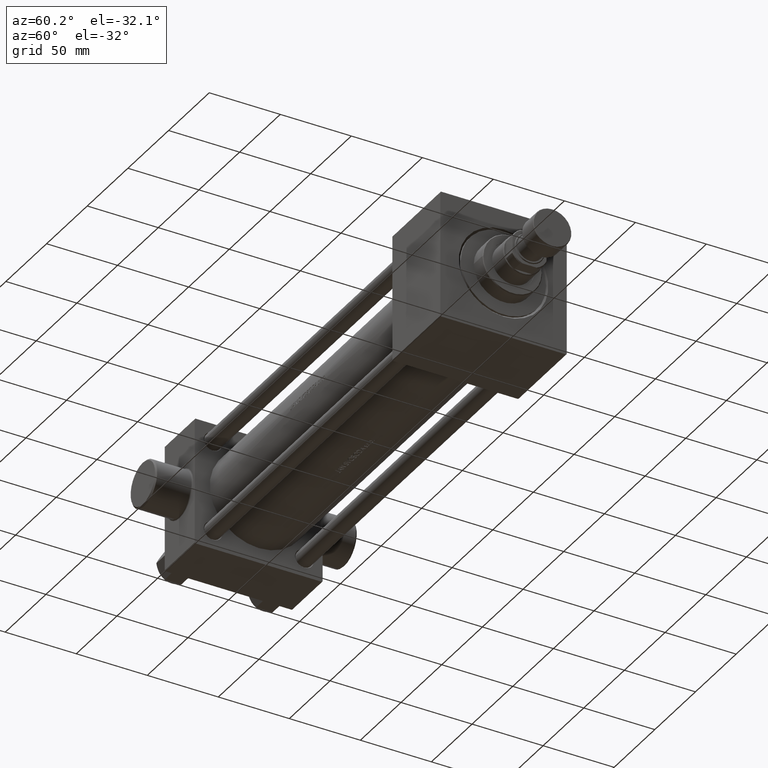
[diagram: clean part render]
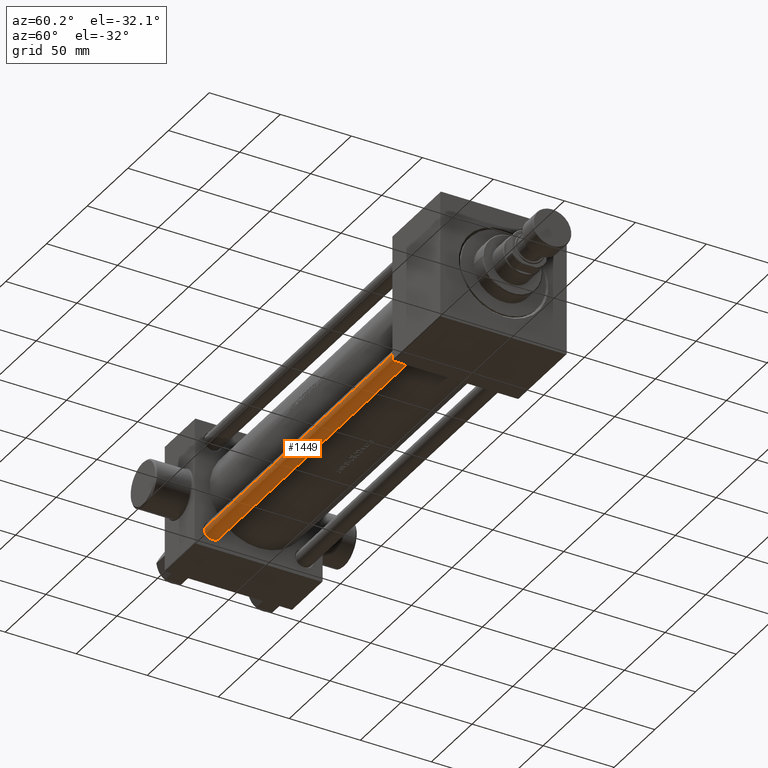
[diagram: same view with one face highlighted and labeled with its STEP entity id]
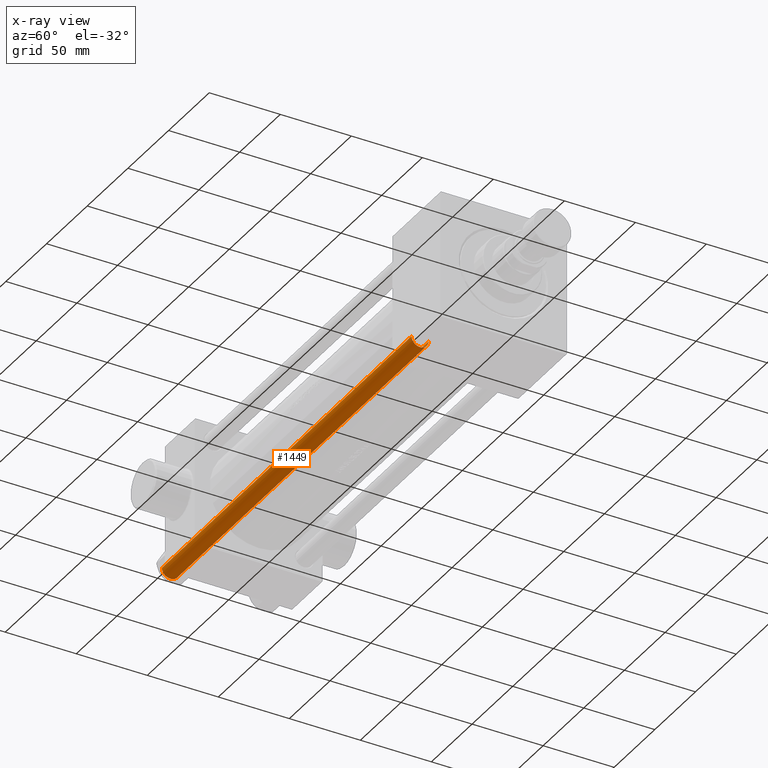
[diagram: x-ray of the same camera — body ghosted, the highlighted face saturated]
A machine part, auxiliary view. The second image highlights one B-rep face of the part: STEP entity #1449.
The next image is the same camera in x-ray: the body ghosted, the highlighted face saturated — about 0% of this face is hidden behind the body in this view.
In plain terms, the highlighted cylindrical surface (edge-blend (fillet) strip) has radius 6 mm, axis along (-1, 0, 0).
Its self-contained STEP definition (entity closure, byte-faithful):
#609 = EDGE_CURVE ( 'NONE', #6016, #19350, #36732, .T. ) ;
#1449 = ADVANCED_FACE ( 'NONE', ( #13856 ), #45783, .T. ) ;
#2974 = AXIS2_PLACEMENT_3D ( 'NONE', #22324, #7003, #31610 ) ;
#4191 = CARTESIAN_POINT ( 'NONE',  ( 0.000000000000000000, 0.000000000000000000, 307.4999999999999432 ) ) ;
#4543 = ORIENTED_EDGE ( 'NONE', *, *, #10567, .T. ) ;
#6016 = VERTEX_POINT ( 'NONE', #23635 ) ;
#7003 = DIRECTION ( 'NONE',  ( -0.000000000000000000, -0.000000000000000000, -1.000000000000000000 ) ) ;
#10081 = VERTEX_POINT ( 'NONE', #12601 ) ;
#10567 = EDGE_CURVE ( 'NONE', #10081, #6016, #46121, .T. ) ;
#10744 = ORIENTED_EDGE ( 'NONE', *, *, #609, .T. ) ;
#11458 = DIRECTION ( 'NONE',  ( -0.000000000000000000, -0.000000000000000000, 1.000000000000000000 ) ) ;
#11973 = DIRECTION ( 'NONE',  ( 0.000000000000000000, 0.000000000000000000, -1.000000000000000000 ) ) ;
#12601 = CARTESIAN_POINT ( 'NONE',  ( 6.000000000000000888, 7.347880794884120722E-16, 307.4999999999999432 ) ) ;
#13856 = FACE_OUTER_BOUND ( 'NONE', #16013, .T. ) ;
#14720 = DIRECTION ( 'NONE',  ( -0.000000000000000000, -0.000000000000000000, -1.000000000000000000 ) ) ;
#15047 = DIRECTION ( 'NONE',  ( 1.000000000000000000, 0.000000000000000000, 0.000000000000000000 ) ) ;
#15699 = CARTESIAN_POINT ( 'NONE',  ( 0.000000000000000000, 0.000000000000000000, 0.5000000000000559552 ) ) ;
#16013 = EDGE_LOOP ( 'NONE', ( #36721, #4543, #10744, #37619 ) ) ;
#19350 = VERTEX_POINT ( 'NONE', #44775 ) ;
#19893 = LINE ( 'NONE', #33878, #22101 ) ;
#21872 = DIRECTION ( 'NONE',  ( 1.000000000000000000, 0.000000000000000000, 0.000000000000000000 ) ) ;
#22101 = VECTOR ( 'NONE', #30084, 1000.000000000000000 ) ;
#22324 = CARTESIAN_POINT ( 'NONE',  ( 0.000000000000000000, 0.000000000000000000, 308.0000000000000000 ) ) ;
#23635 = CARTESIAN_POINT ( 'NONE',  ( -6.000000000000000888, 0.000000000000000000, 307.4999999999999432 ) ) ;
#27548 = EDGE_CURVE ( 'NONE', #10081, #29330, #19893, .T. ) ;
#29330 = VERTEX_POINT ( 'NONE', #35681 ) ;
#30084 = DIRECTION ( 'NONE',  ( -0.000000000000000000, -0.000000000000000000, -1.000000000000000000 ) ) ;
#31610 = DIRECTION ( 'NONE',  ( -1.000000000000000000, 0.000000000000000000, 0.000000000000000000 ) ) ;
#32350 = CIRCLE ( 'NONE', #33865, 6.000000000000000888 ) ;
#33865 = AXIS2_PLACEMENT_3D ( 'NONE', #15699, #11458, #21872 ) ;
#33878 = CARTESIAN_POINT ( 'NONE',  ( 6.000000000000000888, 7.347880794884120722E-16, 308.0000000000000000 ) ) ;
#34852 = AXIS2_PLACEMENT_3D ( 'NONE', #4191, #11973, #15047 ) ;
#35681 = CARTESIAN_POINT ( 'NONE',  ( 6.000000000000000888, 7.347880794884120722E-16, 0.5000000000000559552 ) ) ;
#36172 = VECTOR ( 'NONE', #14720, 1000.000000000000000 ) ;
#36721 = ORIENTED_EDGE ( 'NONE', *, *, #27548, .F. ) ;
#36732 = LINE ( 'NONE', #40043, #36172 ) ;
#37619 = ORIENTED_EDGE ( 'NONE', *, *, #45897, .T. ) ;
#40043 = CARTESIAN_POINT ( 'NONE',  ( -6.000000000000000888, 0.000000000000000000, 308.0000000000000000 ) ) ;
#44775 = CARTESIAN_POINT ( 'NONE',  ( -6.000000000000000888, 0.000000000000000000, 0.5000000000000559552 ) ) ;
#45783 = CYLINDRICAL_SURFACE ( 'NONE', #2974, 6.000000000000000888 ) ;
#45897 = EDGE_CURVE ( 'NONE', #19350, #29330, #32350, .T. ) ;
#46121 = CIRCLE ( 'NONE', #34852, 6.000000000000000888 ) ;